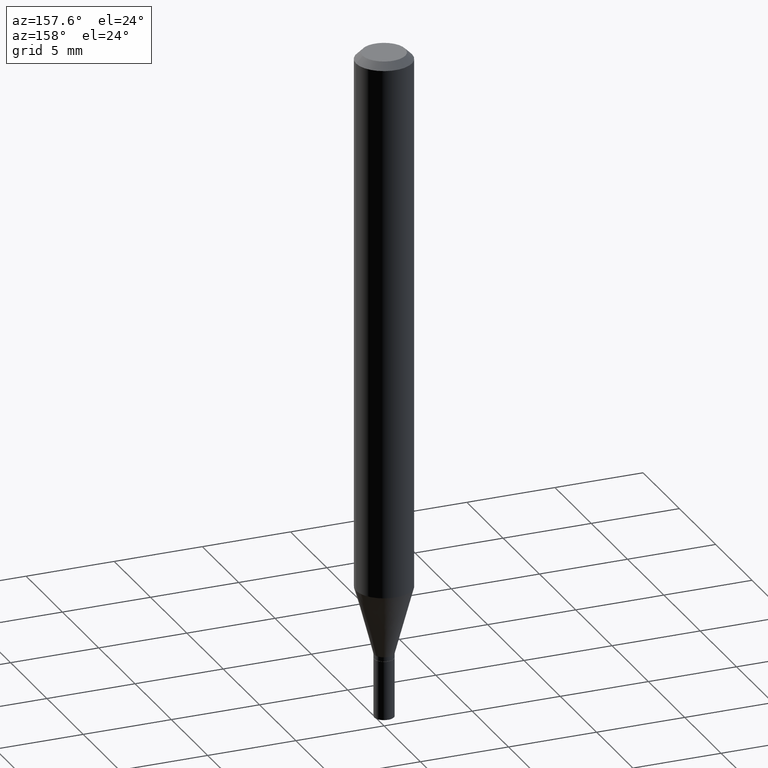
[diagram: clean part render]
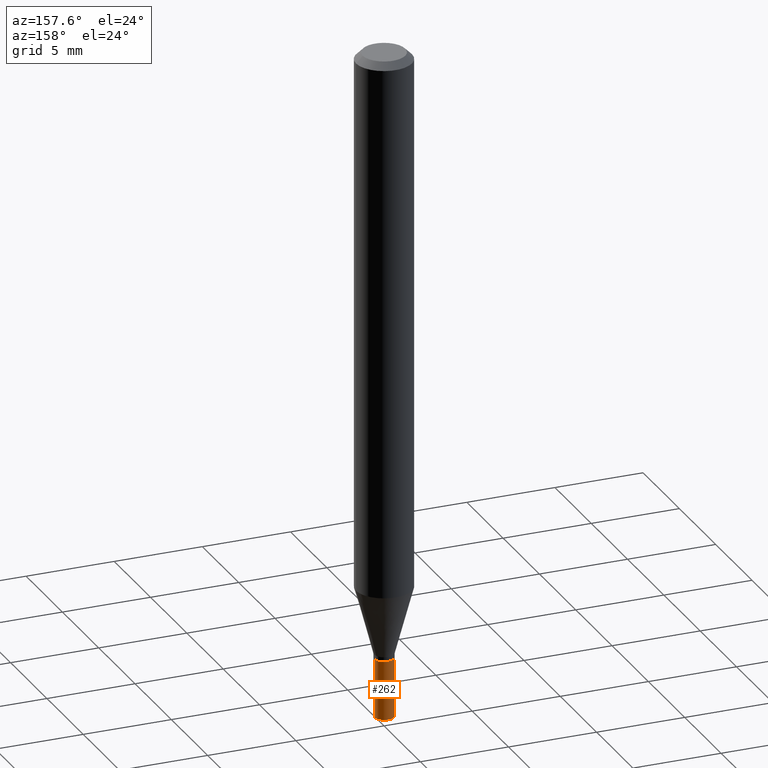
[diagram: same view with one face highlighted and labeled with its STEP entity id]
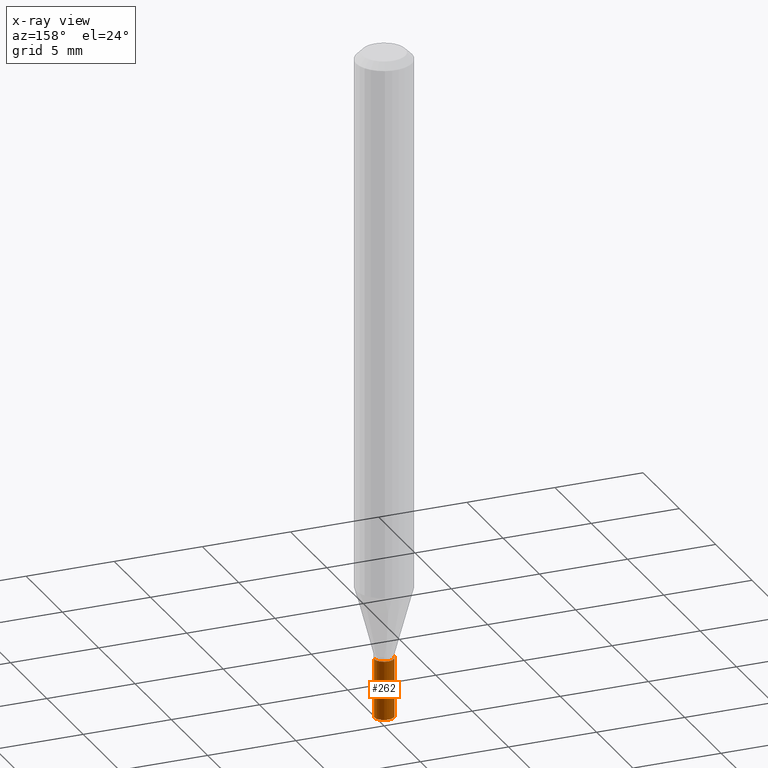
[diagram: x-ray of the same camera — body ghosted, the highlighted face saturated]
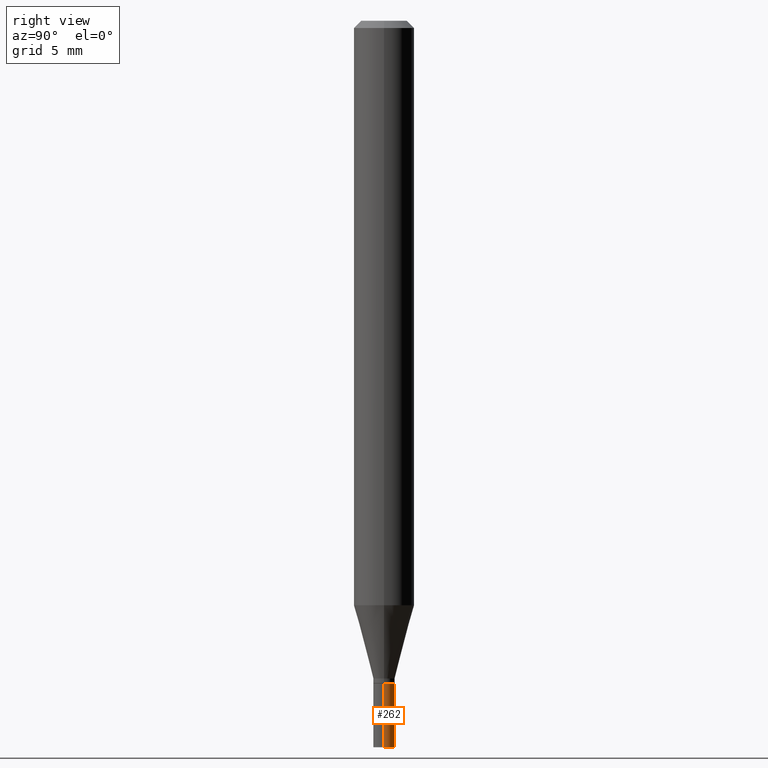
[diagram: same view with one face highlighted and labeled with its STEP entity id]
A machine part, auxiliary view. The second image highlights one B-rep face of the part: STEP entity #262.
The next image is the same camera in x-ray: the body ghosted, the highlighted face saturated — about 0% of this face is hidden behind the body in this view.
A second angle (right view) of the same face is appended — the face is thin or edge-on in the first view.
In plain terms, the highlighted cylindrical surface (edge-blend (fillet) strip) has radius 0.5588 mm, axis along (-0, 0, 1).
Its self-contained STEP definition (entity closure, byte-faithful):
#5 = CARTESIAN_POINT ( 'NONE',  ( 3.345401326861266963E-29, -4.776346471537423880E-15, -1.368000000000000105 ) ) ;
#11 = ORIENTED_EDGE ( 'NONE', *, *, #126, .F. ) ;
#47 = EDGE_CURVE ( 'NONE', #402, #105, #305, .T. ) ;
#54 = ORIENTED_EDGE ( 'NONE', *, *, #430, .T. ) ;
#105 = VERTEX_POINT ( 'NONE', #345 ) ;
#120 = DIRECTION ( 'NONE',  ( 1.000000000000000000, -6.982962677686265922E-15, 4.876176775795936353E-29 ) ) ;
#124 = VECTOR ( 'NONE', #435, 39.37007874015748143 ) ;
#126 = EDGE_CURVE ( 'NONE', #195, #294, #333, .T. ) ;
#127 = EDGE_LOOP ( 'NONE', ( #382, #54, #11, #275 ) ) ;
#139 = DIRECTION ( 'NONE',  ( -2.445468806185136597E-29, 3.491481338843145583E-15, 1.000000000000000000 ) ) ;
#145 = EDGE_CURVE ( 'NONE', #402, #195, #178, .T. ) ;
#149 = VECTOR ( 'NONE', #357, 39.37007874015748143 ) ;
#175 = AXIS2_PLACEMENT_3D ( 'NONE', #5, #139, #354 ) ;
#178 = LINE ( 'NONE', #431, #124 ) ;
#195 = VERTEX_POINT ( 'NONE', #269 ) ;
#202 = CARTESIAN_POINT ( 'NONE',  ( -0.02199999999999999872, -4.850464838033848848E-15, -1.368000000000000105 ) ) ;
#220 = CARTESIAN_POINT ( 'NONE',  ( 3.668203209277704895E-29, -5.237222008264718177E-15, -1.500000000000000222 ) ) ;
#234 = CYLINDRICAL_SURFACE ( 'NONE', #323, 0.02199999999999999872 ) ;
#262 = ADVANCED_FACE ( 'NONE', ( #366 ), #234, .T. ) ;
#269 = CARTESIAN_POINT ( 'NONE',  ( 0.02199999999999999872, -4.929971650446520927E-15, -1.368000000000000105 ) ) ;
#275 = ORIENTED_EDGE ( 'NONE', *, *, #145, .F. ) ;
#282 = DIRECTION ( 'NONE',  ( -2.445468806185136597E-29, 3.491481338843145583E-15, 1.000000000000000000 ) ) ;
#294 = VERTEX_POINT ( 'NONE', #202 ) ;
#298 = LINE ( 'NONE', #365, #149 ) ;
#305 = CIRCLE ( 'NONE', #362, 0.02199999999999999872 ) ;
#323 = AXIS2_PLACEMENT_3D ( 'NONE', #450, #371, #120 ) ;
#333 = CIRCLE ( 'NONE', #175, 0.02199999999999999872 ) ;
#345 = CARTESIAN_POINT ( 'NONE',  ( -0.02199999999999999872, -4.850464838033848848E-15, -1.500000000000000222 ) ) ;
#354 = DIRECTION ( 'NONE',  ( 1.000000000000000000, -6.982962677686245411E-15, 0.000000000000000000 ) ) ;
#357 = DIRECTION ( 'NONE',  ( -2.445468806185136877E-29, 3.491481338843145188E-15, 1.000000000000000000 ) ) ;
#362 = AXIS2_PLACEMENT_3D ( 'NONE', #220, #282, #422 ) ;
#365 = CARTESIAN_POINT ( 'NONE',  ( -0.02199999999999999872, 1.563194018672220318E-16, -1.082165719856079240E-30 ) ) ;
#366 = FACE_OUTER_BOUND ( 'NONE', #127, .T. ) ;
#371 = DIRECTION ( 'NONE',  ( -2.445468806185136597E-29, 3.491481338843145583E-15, 1.000000000000000000 ) ) ;
#382 = ORIENTED_EDGE ( 'NONE', *, *, #47, .T. ) ;
#402 = VERTEX_POINT ( 'NONE', #463 ) ;
#422 = DIRECTION ( 'NONE',  ( 1.000000000000000000, -6.982962677686245411E-15, 0.000000000000000000 ) ) ;
#430 = EDGE_CURVE ( 'NONE', #105, #294, #298, .T. ) ;
#431 = CARTESIAN_POINT ( 'NONE',  ( 0.02199999999999999872, -1.536251789090978361E-16, 1.072758890675105930E-30 ) ) ;
#435 = DIRECTION ( 'NONE',  ( -2.445468806185136877E-29, 3.491481338843145188E-15, 1.000000000000000000 ) ) ;
#450 = CARTESIAN_POINT ( 'NONE',  ( 0.000000000000000000, 0.000000000000000000, 0.000000000000000000 ) ) ;
#463 = CARTESIAN_POINT ( 'NONE',  ( 0.02199999999999999872, -5.390847187173816013E-15, -1.500000000000000222 ) ) ;